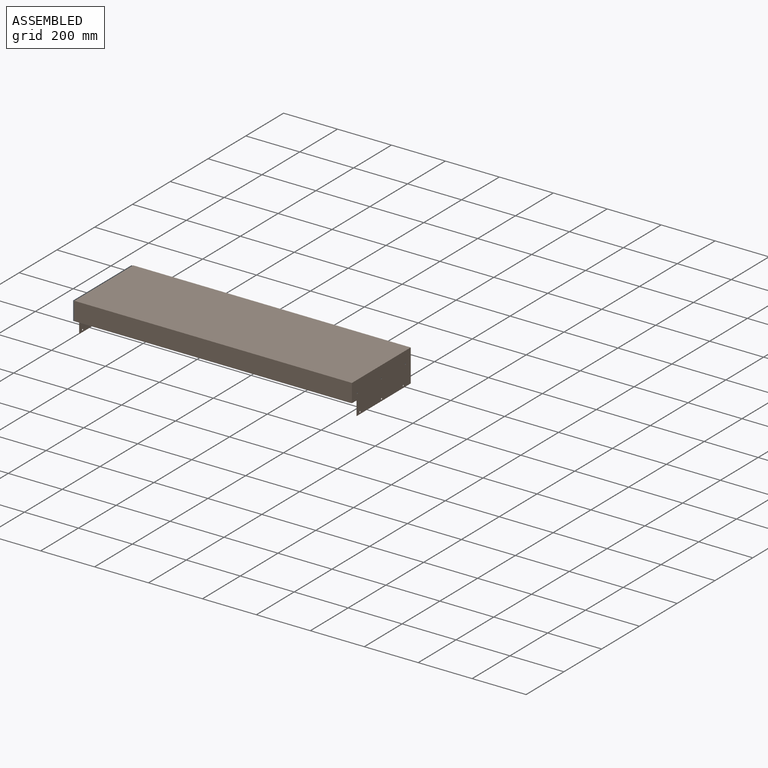
[diagram: assembled view]
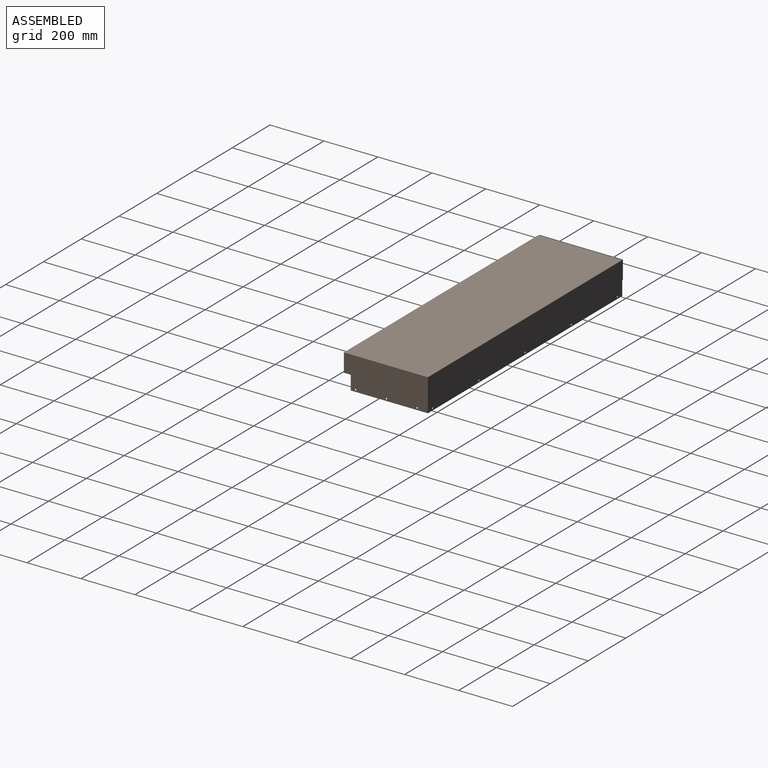
[diagram: assembled view, second angle]
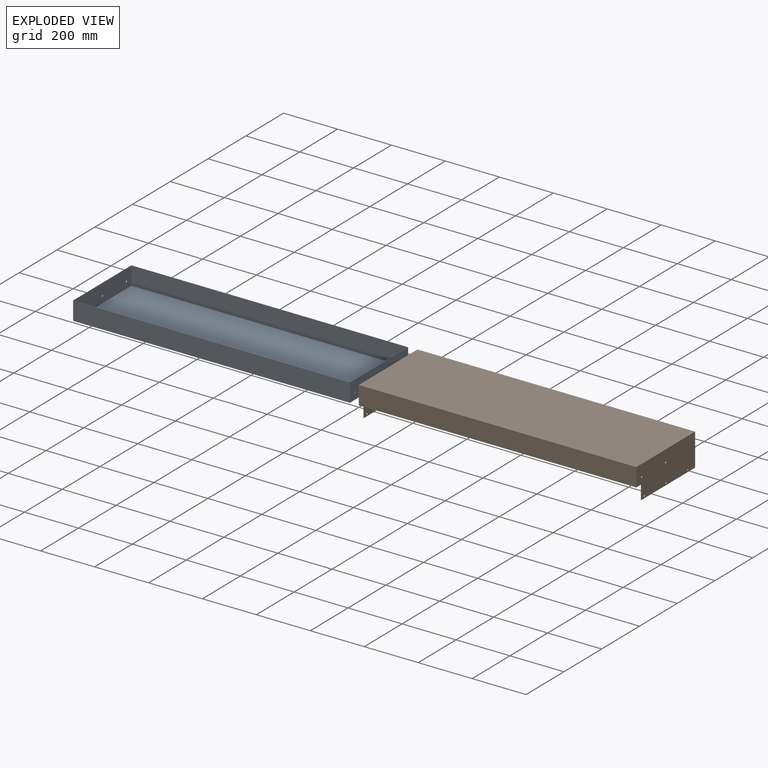
[diagram: exploded view]
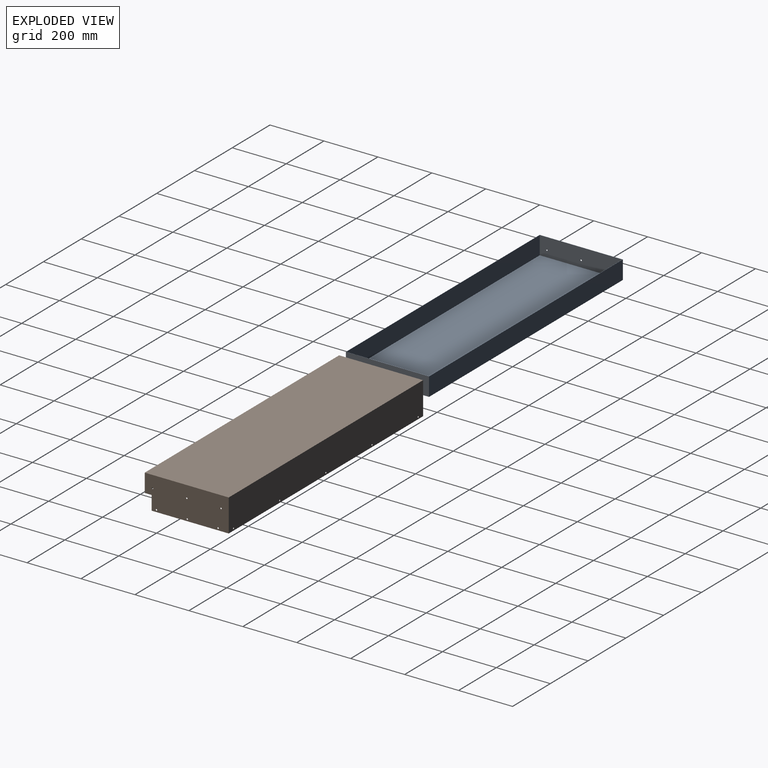
[diagram: exploded view, second angle]
ASSEMBLY  parts=2 mates=2
PART A: 17 faces, bbox 1026.2x308.4x68.6 mm
  f0: plane 1026.16x308.36mm, normal (0,0,1), area 2031.5mm2, adj f1,f2,f3,f4,f6,f7,f8,f9
  f1: plane 1026.16x68.58mm, normal (0,1,0), area 70374.1mm2, adj f0,f2,f4,f5
  f2: plane 308.36x68.58mm, normal (-1,0,0), area 21082.9mm2, adj f0,f1,f3,f5,f12,f14,f16
  f3: plane 1026.16x68.58mm, normal (0,-1,0), area 70374.1mm2, adj f0,f2,f4,f5
  f4: plane 308.36x68.58mm, normal (1,0,0), area 21082.9mm2, adj f0,f1,f3,f5,f11,f13,f15
  f5: plane 1026.16x308.36mm, normal (0,0,-1), area 316422.6mm2, adj f1,f2,f3,f4
  f6: plane 1024.64x67.82mm, normal (0,-1,0), area 69488.8mm2, adj f0,f7,f9,f10
  f7: plane 306.83x67.82mm, normal (1,0,0), area 20744.5mm2, adj f0,f6,f8,f10,f12,f14,f16
  f8: plane 1024.64x67.82mm, normal (0,1,0), area 69488.8mm2, adj f0,f7,f9,f10
  f9: plane 306.83x67.82mm, normal (-1,0,0), area 20744.5mm2, adj f0,f6,f8,f10,f11,f13,f15
  f10: plane 1024.64x306.83mm, normal (0,0,1), area 314391.1mm2, adj f6,f7,f8,f9
  f11: cylinder r=2.61mm len=5.22mm, axis (-1,0,0), area 12.5mm2, adj f4,f9
  f12: cylinder r=2.61mm len=5.22mm, axis (-1,0,0), area 12.5mm2, adj f2,f7
  f13: cylinder r=2.61mm len=5.22mm, axis (-1,0,0), area 12.5mm2, adj f4,f9
  f14: cylinder r=2.61mm len=5.22mm, axis (-1,0,0), area 12.5mm2, adj f2,f7
  f15: cylinder r=2.61mm len=5.22mm, axis (-1,0,0), area 12.5mm2, adj f4,f9
  f16: cylinder r=2.61mm len=5.22mm, axis (-1,0,0), area 12.5mm2, adj f2,f7
PART B: 31 faces, bbox 1029.2x311.4x120.7 mm
  f0: plane 311.43x120.65mm, normal (-1,0,0), area 36110.1mm2, adj f1,f2,f3,f5,f12,f13,f20,f22
  f1: plane 1029.21x68.07mm, normal (0,-1,0), area 70060.2mm2, adj f0,f4,f5,f12
  f2: plane 1029.21x286.03mm, normal (0,0,-1), area 1219mm2, adj f0,f3,f4,f6,f7,f9,f11,f13
  f3: plane 1029.21x120.65mm, normal (0,1,0), area 124067mm2, adj f0,f2,f4,f5,f14,f15,f16,f17
  f4: plane 311.43x120.65mm, normal (1,0,0), area 36110.1mm2, adj f1,f2,f3,f5,f11,f12,f19,f21
  f5: plane 1029.21x311.43mm, normal (0,0,1), area 320525.6mm2, adj f0,f1,f3,f4
  f6: plane 1027.68x119.89mm, normal (0,-1,0), area 123100mm2, adj f2,f7,f9,f10,f14,f15,f16,f17
  f7: plane 309.91x119.89mm, normal (1,0,0), area 35730.1mm2, adj f2,f6,f8,f10,f12,f13,f20,f22
  f8: plane 1027.68x67.31mm, normal (0,1,0), area 69173.4mm2, adj f7,f9,f10,f12
  f9: plane 309.91x119.89mm, normal (-1,0,0), area 35730.1mm2, adj f2,f6,f8,f10,f11,f12,f19,f21
  f10: plane 1027.68x309.91mm, normal (0,0,-1), area 318484.8mm2, adj f6,f7,f8,f9
  f11: plane 52.58x0.76mm, normal (0,-1,0), area 40.1mm2, adj f2,f4,f9,f12
  f12: plane 1029.21x25.4mm, normal (0,0,-1), area 821.8mm2, adj f0,f1,f4,f7,f8,f9,f11,f13
  f13: plane 52.58x0.76mm, normal (0,-1,0), area 40.1mm2, adj f0,f2,f7,f12
  f14: cylinder r=2.61mm len=5.22mm, axis (0,1,0), area 12.5mm2, adj f3,f6
  f15: cylinder r=2.61mm len=5.22mm, axis (0,1,0), area 12.5mm2, adj f3,f6
  f16: cylinder r=2.61mm len=5.22mm, axis (0,1,0), area 12.5mm2, adj f3,f6
  f17: cylinder r=2.61mm len=5.22mm, axis (0,1,0), area 12.5mm2, adj f3,f6
  f18: cylinder r=2.61mm len=5.22mm, axis (0,1,0), area 12.5mm2, adj f3,f6
  f19: cylinder r=2.61mm len=5.22mm, axis (-1,0,0), area 12.5mm2, adj f4,f9
  f20: cylinder r=2.61mm len=5.22mm, axis (-1,0,0), area 12.5mm2, adj f0,f7
  f21: cylinder r=2.61mm len=5.22mm, axis (-1,0,0), area 12.5mm2, adj f4,f9
  f22: cylinder r=2.61mm len=5.22mm, axis (-1,0,0), area 12.5mm2, adj f0,f7
  f23: cylinder r=2.61mm len=5.22mm, axis (-1,0,0), area 12.5mm2, adj f4,f9
  f24: cylinder r=2.61mm len=5.22mm, axis (-1,0,0), area 12.5mm2, adj f0,f7
  f25: cylinder r=2.61mm len=5.22mm, axis (-1,0,0), area 12.5mm2, adj f4,f9
  f26: cylinder r=2.61mm len=5.22mm, axis (-1,0,0), area 12.5mm2, adj f0,f7
  f27: cylinder r=2.61mm len=5.22mm, axis (-1,0,0), area 12.5mm2, adj f4,f9
  f28: cylinder r=2.61mm len=5.22mm, axis (-1,0,0), area 12.5mm2, adj f0,f7
  f29: cylinder r=2.61mm len=5.22mm, axis (-1,0,0), area 12.5mm2, adj f4,f9
  f30: cylinder r=2.61mm len=5.22mm, axis (-1,0,0), area 12.5mm2, adj f0,f7
PLACE A t=(-70.67,45.8,114.92)mm
PLACE B t=(-63.78,45.8,63.61)mm fixed
MATE cylindrical B.f29 <-> A.f15  axis (-1,0,0) through (-578.38,-81.2,139.81)mm
MATE cylindrical A.f11 <-> B.f25  axis (-1,0,0) through (-583.75,172.8,139.81)mm
